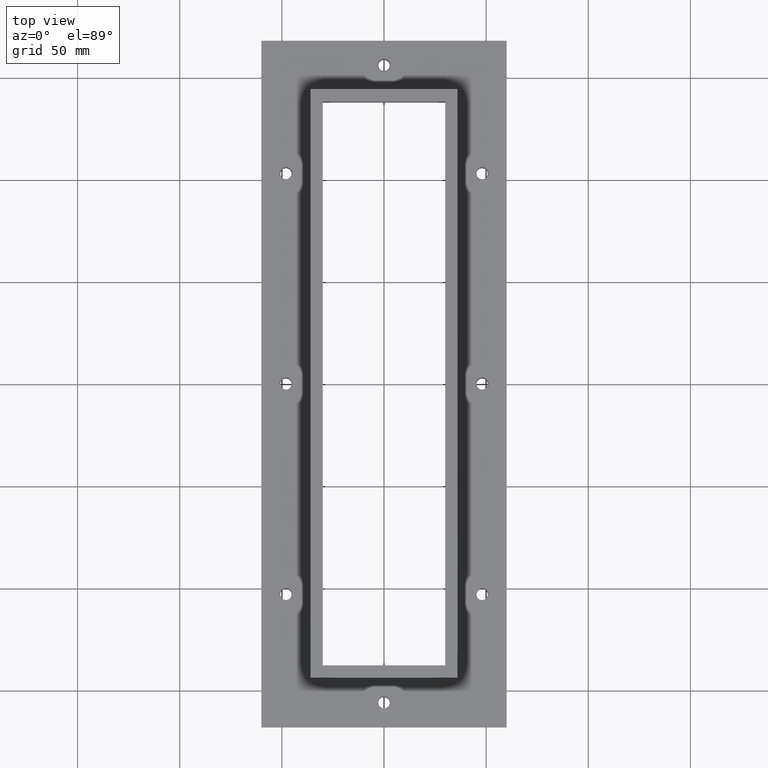
[diagram: clean part render]
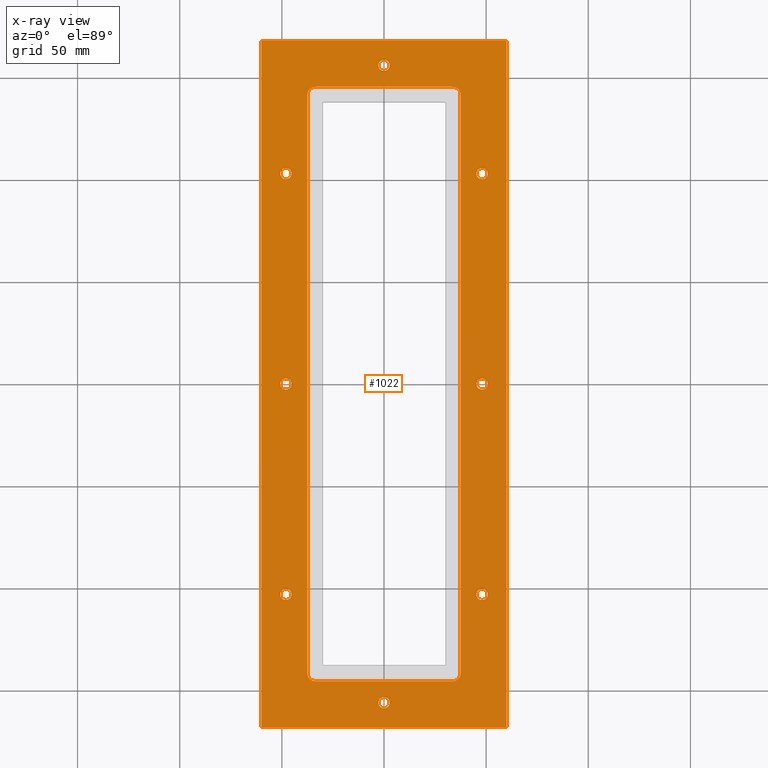
[diagram: x-ray — body ghosted, one internal face saturated and labeled with its STEP entity id]
A machine part, top view, then the same camera in x-ray: the body is ghosted and one INTERNAL B-rep face — a face not visible from any outside direction — is saturated and labeled: STEP entity #1022.
In plain terms, the highlighted planar face has unit normal (0, -0, -1).
Its self-contained STEP definition (entity closure, byte-faithful):
#68=FACE_BOUND('',#236,.T.);
#69=FACE_BOUND('',#237,.T.);
#70=FACE_BOUND('',#238,.T.);
#71=FACE_BOUND('',#239,.T.);
#72=FACE_BOUND('',#240,.T.);
#73=FACE_BOUND('',#241,.T.);
#74=FACE_BOUND('',#242,.T.);
#75=FACE_BOUND('',#243,.T.);
#76=FACE_BOUND('',#244,.T.);
#106=PLANE('',#1133);
#156=FACE_OUTER_BOUND('',#235,.T.);
#235=EDGE_LOOP('',(#933,#934,#935,#936));
#236=EDGE_LOOP('',(#937));
#237=EDGE_LOOP('',(#938));
#238=EDGE_LOOP('',(#939));
#239=EDGE_LOOP('',(#940));
#240=EDGE_LOOP('',(#941));
#241=EDGE_LOOP('',(#942));
#242=EDGE_LOOP('',(#943));
#243=EDGE_LOOP('',(#944));
#244=EDGE_LOOP('',(#945,#946,#947,#948,#949,#950,#951,#952));
#311=LINE('',#1616,#403);
#315=LINE('',#1628,#407);
#319=LINE('',#1640,#411);
#323=LINE('',#1651,#415);
#325=LINE('',#1656,#417);
#329=LINE('',#1664,#421);
#332=LINE('',#1670,#424);
#335=LINE('',#1675,#427);
#403=VECTOR('',#1346,10.);
#407=VECTOR('',#1358,10.);
#411=VECTOR('',#1370,10.);
#415=VECTOR('',#1382,10.);
#417=VECTOR('',#1386,10.);
#421=VECTOR('',#1392,10.);
#424=VECTOR('',#1397,10.);
#427=VECTOR('',#1402,10.);
#445=CIRCLE('',#1089,2.75);
#447=CIRCLE('',#1092,2.75);
#449=CIRCLE('',#1095,2.75);
#451=CIRCLE('',#1098,2.75);
#453=CIRCLE('',#1101,2.75);
#455=CIRCLE('',#1104,2.75);
#457=CIRCLE('',#1107,2.75);
#459=CIRCLE('',#1110,2.75);
#461=CIRCLE('',#1113,3.99999999999997);
#463=CIRCLE('',#1117,3.99999999999995);
#465=CIRCLE('',#1121,4.00000000000002);
#467=CIRCLE('',#1125,4.);
#517=VERTEX_POINT('',#1558);
#519=VERTEX_POINT('',#1564);
#521=VERTEX_POINT('',#1570);
#523=VERTEX_POINT('',#1576);
#525=VERTEX_POINT('',#1582);
#527=VERTEX_POINT('',#1588);
#529=VERTEX_POINT('',#1594);
#531=VERTEX_POINT('',#1600);
#533=VERTEX_POINT('',#1606);
#534=VERTEX_POINT('',#1607);
#537=VERTEX_POINT('',#1615);
#539=VERTEX_POINT('',#1621);
#541=VERTEX_POINT('',#1627);
#543=VERTEX_POINT('',#1633);
#545=VERTEX_POINT('',#1639);
#547=VERTEX_POINT('',#1645);
#549=VERTEX_POINT('',#1654);
#550=VERTEX_POINT('',#1655);
#553=VERTEX_POINT('',#1663);
#555=VERTEX_POINT('',#1669);
#629=EDGE_CURVE('',#517,#517,#445,.T.);
#632=EDGE_CURVE('',#519,#519,#447,.T.);
#635=EDGE_CURVE('',#521,#521,#449,.T.);
#638=EDGE_CURVE('',#523,#523,#451,.T.);
#641=EDGE_CURVE('',#525,#525,#453,.T.);
#644=EDGE_CURVE('',#527,#527,#455,.T.);
#647=EDGE_CURVE('',#529,#529,#457,.T.);
#650=EDGE_CURVE('',#531,#531,#459,.T.);
#653=EDGE_CURVE('',#533,#534,#461,.T.);
#657=EDGE_CURVE('',#537,#533,#311,.T.);
#660=EDGE_CURVE('',#539,#537,#463,.T.);
#663=EDGE_CURVE('',#541,#539,#315,.T.);
#666=EDGE_CURVE('',#543,#541,#465,.T.);
#669=EDGE_CURVE('',#545,#543,#319,.T.);
#672=EDGE_CURVE('',#547,#545,#467,.T.);
#675=EDGE_CURVE('',#534,#547,#323,.T.);
#677=EDGE_CURVE('',#549,#550,#325,.T.);
#681=EDGE_CURVE('',#553,#549,#329,.T.);
#684=EDGE_CURVE('',#555,#553,#332,.T.);
#687=EDGE_CURVE('',#550,#555,#335,.T.);
#933=ORIENTED_EDGE('',*,*,#687,.F.);
#934=ORIENTED_EDGE('',*,*,#677,.F.);
#935=ORIENTED_EDGE('',*,*,#681,.F.);
#936=ORIENTED_EDGE('',*,*,#684,.F.);
#937=ORIENTED_EDGE('',*,*,#629,.T.);
#938=ORIENTED_EDGE('',*,*,#632,.T.);
#939=ORIENTED_EDGE('',*,*,#635,.T.);
#940=ORIENTED_EDGE('',*,*,#638,.T.);
#941=ORIENTED_EDGE('',*,*,#641,.T.);
#942=ORIENTED_EDGE('',*,*,#644,.T.);
#943=ORIENTED_EDGE('',*,*,#647,.T.);
#944=ORIENTED_EDGE('',*,*,#650,.T.);
#945=ORIENTED_EDGE('',*,*,#675,.F.);
#946=ORIENTED_EDGE('',*,*,#653,.F.);
#947=ORIENTED_EDGE('',*,*,#657,.F.);
#948=ORIENTED_EDGE('',*,*,#660,.F.);
#949=ORIENTED_EDGE('',*,*,#663,.F.);
#950=ORIENTED_EDGE('',*,*,#666,.F.);
#951=ORIENTED_EDGE('',*,*,#669,.F.);
#952=ORIENTED_EDGE('',*,*,#672,.F.);
#1022=ADVANCED_FACE('',(#156,#68,#69,#70,#71,#72,#73,#74,#75,#76),#106,
 .F.);
#1089=AXIS2_PLACEMENT_3D('',#1559,#1282,#1283);
#1092=AXIS2_PLACEMENT_3D('',#1565,#1289,#1290);
#1095=AXIS2_PLACEMENT_3D('',#1571,#1296,#1297);
#1098=AXIS2_PLACEMENT_3D('',#1577,#1303,#1304);
#1101=AXIS2_PLACEMENT_3D('',#1583,#1310,#1311);
#1104=AXIS2_PLACEMENT_3D('',#1589,#1317,#1318);
#1107=AXIS2_PLACEMENT_3D('',#1595,#1324,#1325);
#1110=AXIS2_PLACEMENT_3D('',#1601,#1331,#1332);
#1113=AXIS2_PLACEMENT_3D('',#1608,#1338,#1339);
#1117=AXIS2_PLACEMENT_3D('',#1622,#1351,#1352);
#1121=AXIS2_PLACEMENT_3D('',#1634,#1363,#1364);
#1125=AXIS2_PLACEMENT_3D('',#1646,#1375,#1376);
#1133=AXIS2_PLACEMENT_3D('',#1678,#1406,#1407);
#1282=DIRECTION('center_axis',(0.,-1.38777878078145E-16,-1.));
#1283=DIRECTION('ref_axis',(-1.,-2.96059473233375E-16,4.10865054802611E-32));
#1289=DIRECTION('center_axis',(0.,-1.38777878078145E-16,-1.));
#1290=DIRECTION('ref_axis',(-1.,-2.96059473233375E-16,4.10865054802611E-32));
#1296=DIRECTION('center_axis',(0.,-1.38777878078145E-16,-1.));
#1297=DIRECTION('ref_axis',(-1.,-2.96059473233375E-16,4.10865054802611E-32));
#1303=DIRECTION('center_axis',(0.,-1.38777878078145E-16,-1.));
#1304=DIRECTION('ref_axis',(1.,-2.96059473233375E-16,4.10865054802611E-32));
#1310=DIRECTION('center_axis',(0.,-1.38777878078145E-16,-1.));
#1311=DIRECTION('ref_axis',(1.,-2.96059473233375E-16,4.10865054802611E-32));
#1317=DIRECTION('center_axis',(0.,-1.38777878078145E-16,-1.));
#1318=DIRECTION('ref_axis',(1.,-2.96059473233375E-16,4.10865054802611E-32));
#1324=DIRECTION('center_axis',(0.,-1.38777878078145E-16,-1.));
#1325=DIRECTION('ref_axis',(1.,-2.96059473233375E-16,4.10865054802611E-32));
#1331=DIRECTION('center_axis',(0.,-1.38777878078145E-16,-1.));
#1332=DIRECTION('ref_axis',(1.,-2.96059473233375E-16,4.10865054802611E-32));
#1338=DIRECTION('center_axis',(0.,1.38777878078145E-16,1.));
#1339=DIRECTION('ref_axis',(-1.,2.96059473233375E-16,-4.10865054802611E-32));
#1346=DIRECTION('',(1.,-2.96059473233375E-16,4.1086505480261E-32));
#1351=DIRECTION('center_axis',(0.,1.38777878078145E-16,1.));
#1352=DIRECTION('ref_axis',(2.96059473233375E-16,1.,-1.38777878078145E-16));
#1358=DIRECTION('',(-9.86516195261741E-16,-1.,1.38777878078145E-16));
#1363=DIRECTION('center_axis',(0.,1.38777878078145E-16,1.));
#1364=DIRECTION('ref_axis',(1.,5.25505564989238E-15,-7.29285472274629E-31));
#1370=DIRECTION('',(-1.,2.96059473233375E-16,-4.1086505480261E-32));
#1375=DIRECTION('center_axis',(-2.18952885050753E-47,1.38777878078145E-16,
1.));
#1376=DIRECTION('ref_axis',(8.14163551391782E-16,-1.,1.38777878078145E-16));
#1382=DIRECTION('',(3.58828266145045E-16,1.,-1.38777878078145E-16));
#1386=DIRECTION('',(1.90323947078598E-16,1.,-1.38777878078145E-16));
#1392=DIRECTION('',(-1.,-2.96059473233375E-16,4.1086505480261E-32));
#1397=DIRECTION('',(-3.17206578464332E-17,-1.,1.38777878078145E-16));
#1402=DIRECTION('',(1.,-2.96059473233375E-16,4.1086505480261E-32));
#1406=DIRECTION('center_axis',(0.,-1.38777878078145E-16,-1.));
#1407=DIRECTION('ref_axis',(-1.,0.,0.));
#1558=CARTESIAN_POINT('',(50.75,103.,-3.00000000000004));
#1559=CARTESIAN_POINT('Origin',(48.,103.,-3.00000000000004));
#1564=CARTESIAN_POINT('',(50.75,-3.29450222357959E-15,-3.00000000000004));
#1565=CARTESIAN_POINT('Origin',(48.,-3.77188790520585E-15,-3.00000000000004));
#1570=CARTESIAN_POINT('',(50.75,-103.,-3.00000000000004));
#1571=CARTESIAN_POINT('Origin',(48.,-103.,-3.00000000000004));
#1576=CARTESIAN_POINT('',(-50.75,103.,-3.00000000000004));
#1577=CARTESIAN_POINT('Origin',(-48.,103.,-3.00000000000004));
#1582=CARTESIAN_POINT('',(-50.75,-3.29450222357959E-15,-3.00000000000004));
#1583=CARTESIAN_POINT('Origin',(-48.,-3.77188790520585E-15,-3.00000000000004));
#1588=CARTESIAN_POINT('',(-50.75,-103.,-3.00000000000004));
#1589=CARTESIAN_POINT('Origin',(-48.,-103.,-3.00000000000004));
#1594=CARTESIAN_POINT('',(-2.75000000000006,-156.,-3.00000000000004));
#1595=CARTESIAN_POINT('Origin',(-6.21724893790088E-14,-156.,-3.00000000000004));
#1600=CARTESIAN_POINT('',(-2.75000000000003,156.,-3.00000000000004));
#1601=CARTESIAN_POINT('Origin',(-2.66453525910038E-14,156.,-3.00000000000004));
#1606=CARTESIAN_POINT('',(33.4999999999999,-145.5,-3.));
#1607=CARTESIAN_POINT('',(37.4999999999999,-141.5,-3.));
#1608=CARTESIAN_POINT('Origin',(33.4999999999999,-141.5,-3.));
#1615=CARTESIAN_POINT('',(-33.5,-145.5,-3.));
#1616=CARTESIAN_POINT('',(-33.5,-145.5,-3.));
#1621=CARTESIAN_POINT('',(-37.5000000000001,-141.5,-3.));
#1622=CARTESIAN_POINT('Origin',(-33.5,-141.5,-3.));
#1627=CARTESIAN_POINT('',(-37.4999999999998,141.5,-3.00000000000004));
#1628=CARTESIAN_POINT('',(-37.4999999999998,141.5,-3.00000000000004));
#1633=CARTESIAN_POINT('',(-33.4999999999997,145.5,-3.00000000000004));
#1634=CARTESIAN_POINT('Origin',(-33.4999999999997,141.5,-3.00000000000004));
#1639=CARTESIAN_POINT('',(33.5,145.5,-3.00000000000004));
#1640=CARTESIAN_POINT('',(33.5,145.5,-3.00000000000004));
#1645=CARTESIAN_POINT('',(37.5,141.5,-3.00000000000004));
#1646=CARTESIAN_POINT('Origin',(33.5,141.5,-3.00000000000004));
#1651=CARTESIAN_POINT('',(37.4999999999999,-141.5,-3.));
#1654=CARTESIAN_POINT('',(-60.,-168.,-3.));
#1655=CARTESIAN_POINT('',(-59.9999999999999,168.,-3.00000000000004));
#1656=CARTESIAN_POINT('',(-60.,-168.,-3.));
#1663=CARTESIAN_POINT('',(60.,-168.,-3.));
#1664=CARTESIAN_POINT('',(60.,-168.,-3.));
#1669=CARTESIAN_POINT('',(60.,168.,-3.00000000000004));
#1670=CARTESIAN_POINT('',(60.,168.,-3.00000000000004));
#1675=CARTESIAN_POINT('',(-59.9999999999999,168.,-3.00000000000004));
#1678=CARTESIAN_POINT('Origin',(-1.77635683940025E-14,-8.88178419700125E-14,
-3.00000000000002));